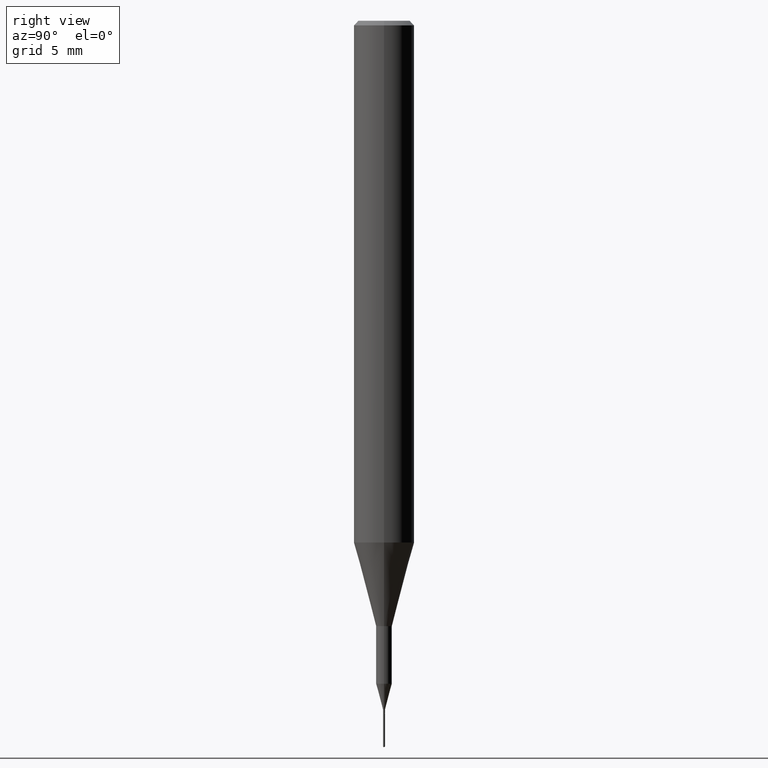
[diagram: clean part render]
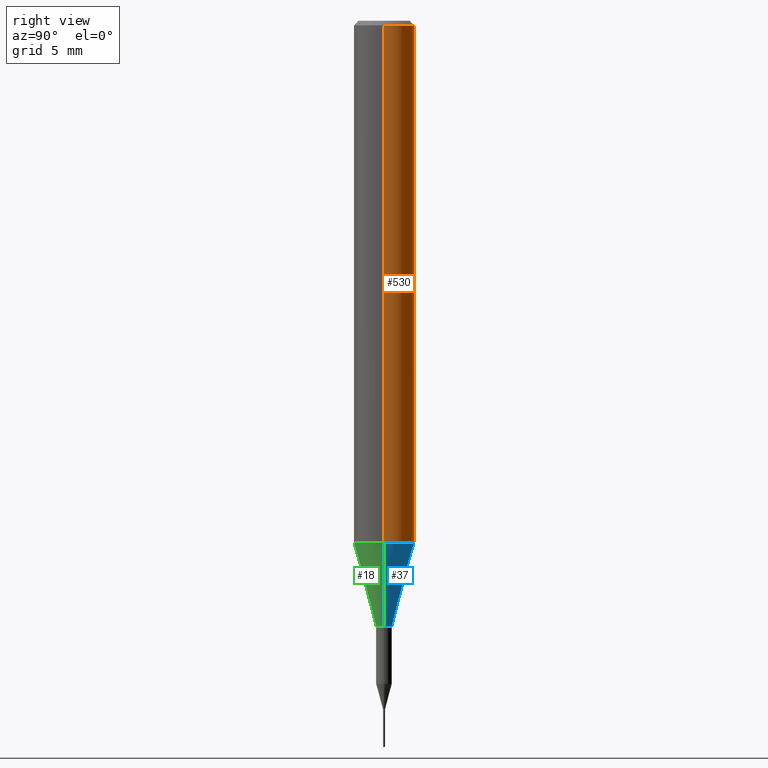
[diagram: same view with three faces highlighted in distinct colors, each labeled with its STEP entity id]
A machine part, right view with three faces highlighted in distinct colors.
Their STEP definitions:

[orange] entity #530 — the highlighted cylindrical surface (edge-blend (fillet) strip) has radius 1.5875 mm, axis along (-0, 0, 1).
#21 = AXIS2_PLACEMENT_3D ( 'NONE', #155, #587, #548 ) ;
#27 = EDGE_CURVE ( 'NONE', #487, #317, #205, .T. ) ;
#32 = ORIENTED_EDGE ( 'NONE', *, *, #397, .T. ) ;
#35 = DIRECTION ( 'NONE',  ( -2.445468806185136597E-29, 3.491481338843145583E-15, 1.000000000000000000 ) ) ;
#44 = CARTESIAN_POINT ( 'NONE',  ( 2.634730117954813298E-29, -3.761696332605275695E-15, -1.077392650149939346 ) ) ;
#47 = AXIS2_PLACEMENT_3D ( 'NONE', #309, #35, #268 ) ;
#56 = DIRECTION ( 'NONE',  ( 1.000000000000000000, -6.982962677686264344E-15, 0.000000000000000000 ) ) ;
#108 = CARTESIAN_POINT ( 'NONE',  ( 0.06250000000000000000, -4.691678049070463404E-16, -0.009375000000000062103 ) ) ;
#132 = DIRECTION ( 'NONE',  ( -2.445468806185136877E-29, 3.491481338843145188E-15, 1.000000000000000000 ) ) ;
#134 = VERTEX_POINT ( 'NONE', #281 ) ;
#155 = CARTESIAN_POINT ( 'NONE',  ( 0.000000000000000000, 0.000000000000000000, 0.000000000000000000 ) ) ;
#205 = LINE ( 'NONE', #339, #562 ) ;
#236 = EDGE_LOOP ( 'NONE', ( #577, #32, #416, #293 ) ) ;
#268 = DIRECTION ( 'NONE',  ( 1.000000000000000000, -6.982962677686266711E-15, 0.000000000000000000 ) ) ;
#281 = CARTESIAN_POINT ( 'NONE',  ( -0.06250000000000012490, -3.317607122755211895E-15, -1.077392650149939346 ) ) ;
#289 = CARTESIAN_POINT ( 'NONE',  ( -0.06250000000000000000, -1.453125275228401137E-15, -0.009375000000000062103 ) ) ;
#293 = ORIENTED_EDGE ( 'NONE', *, *, #27, .F. ) ;
#309 = CARTESIAN_POINT ( 'NONE',  ( 2.292627005798580623E-31, -3.273263755165470801E-17, -0.009375000000000062103 ) ) ;
#317 = VERTEX_POINT ( 'NONE', #108 ) ;
#339 = CARTESIAN_POINT ( 'NONE',  ( 0.06250000000000006939, -4.364351673553921624E-16, 3.047610484872463374E-30 ) ) ;
#342 = LINE ( 'NONE', #521, #454 ) ;
#363 = VERTEX_POINT ( 'NONE', #289 ) ;
#386 = CYLINDRICAL_SURFACE ( 'NONE', #21, 0.06250000000000006939 ) ;
#397 = EDGE_CURVE ( 'NONE', #134, #363, #342, .T. ) ;
#416 = ORIENTED_EDGE ( 'NONE', *, *, #497, .F. ) ;
#436 = DIRECTION ( 'NONE',  ( -2.445468806185136877E-29, 3.491481338843145188E-15, 1.000000000000000000 ) ) ;
#443 = AXIS2_PLACEMENT_3D ( 'NONE', #44, #469, #56 ) ;
#454 = VECTOR ( 'NONE', #132, 39.37007874015748143 ) ;
#469 = DIRECTION ( 'NONE',  ( -2.445468806185136597E-29, 3.491481338843145583E-15, 1.000000000000000000 ) ) ;
#487 = VERTEX_POINT ( 'NONE', #527 ) ;
#497 = EDGE_CURVE ( 'NONE', #317, #363, #510, .T. ) ;
#498 = CIRCLE ( 'NONE', #443, 0.06250000000000012490 ) ;
#510 = CIRCLE ( 'NONE', #47, 0.06250000000000000000 ) ;
#521 = CARTESIAN_POINT ( 'NONE',  ( -0.06250000000000006939, 4.440892098500631092E-16, -3.074334431409319267E-30 ) ) ;
#527 = CARTESIAN_POINT ( 'NONE',  ( 0.06250000000000012490, -4.198131499960668153E-15, -1.077392650149939346 ) ) ;
#530 = ADVANCED_FACE ( 'NONE', ( #557 ), #386, .T. ) ;
#548 = DIRECTION ( 'NONE',  ( 1.000000000000000000, -6.982962677686266711E-15, 4.876176775795935793E-29 ) ) ;
#557 = FACE_OUTER_BOUND ( 'NONE', #236, .T. ) ;
#562 = VECTOR ( 'NONE', #436, 39.37007874015748143 ) ;
#577 = ORIENTED_EDGE ( 'NONE', *, *, #578, .T. ) ;
#578 = EDGE_CURVE ( 'NONE', #487, #134, #498, .T. ) ;
#587 = DIRECTION ( 'NONE',  ( -2.445468806185136597E-29, 3.491481338843145583E-15, 1.000000000000000000 ) ) ;

[blue] entity #37 — the highlighted conical surface has half-angle 15 deg.
#8 = CARTESIAN_POINT ( 'NONE',  ( -0.06250000000000012490, -3.317607122755211895E-15, -1.077392650149939346 ) ) ;
#37 = ADVANCED_FACE ( 'NONE', ( #53 ), #110, .T. ) ;
#44 = CARTESIAN_POINT ( 'NONE',  ( 2.634730117954813298E-29, -3.761696332605275695E-15, -1.077392650149939346 ) ) ;
#51 = CIRCLE ( 'NONE', #399, 0.01624999999999999709 ) ;
#53 = FACE_OUTER_BOUND ( 'NONE', #130, .T. ) ;
#56 = DIRECTION ( 'NONE',  ( 1.000000000000000000, -6.982962677686264344E-15, 0.000000000000000000 ) ) ;
#110 = CONICAL_SURFACE ( 'NONE', #274, 0.06250000000000012490, 0.2617993877991501295 ) ;
#118 = EDGE_CURVE ( 'NONE', #362, #156, #51, .T. ) ;
#122 = DIRECTION ( 'NONE',  ( 1.000000000000000000, -6.982962677686288799E-15, 0.000000000000000000 ) ) ;
#128 = ORIENTED_EDGE ( 'NONE', *, *, #578, .F. ) ;
#130 = EDGE_LOOP ( 'NONE', ( #251, #180, #128, #529 ) ) ;
#134 = VERTEX_POINT ( 'NONE', #281 ) ;
#148 = VECTOR ( 'NONE', #275, 39.37007874015747433 ) ;
#156 = VERTEX_POINT ( 'NONE', #415 ) ;
#173 = EDGE_CURVE ( 'NONE', #156, #134, #584, .T. ) ;
#180 = ORIENTED_EDGE ( 'NONE', *, *, #173, .T. ) ;
#251 = ORIENTED_EDGE ( 'NONE', *, *, #118, .T. ) ;
#274 = AXIS2_PLACEMENT_3D ( 'NONE', #338, #551, #290 ) ;
#275 = DIRECTION ( 'NONE',  ( 0.2588190451025214611, 1.565188264969621573E-15, 0.9659258262890682012 ) ) ;
#281 = CARTESIAN_POINT ( 'NONE',  ( -0.06250000000000012490, -3.317607122755211895E-15, -1.077392650149939346 ) ) ;
#290 = DIRECTION ( 'NONE',  ( 1.000000000000000000, -6.982962677686264344E-15, 0.000000000000000000 ) ) ;
#315 = LINE ( 'NONE', #371, #148 ) ;
#331 = CARTESIAN_POINT ( 'NONE',  ( 0.01624999999999999709, -4.477824817066334148E-15, -1.250000000000000000 ) ) ;
#338 = CARTESIAN_POINT ( 'NONE',  ( 2.634730117954813298E-29, -3.761696332605275695E-15, -1.077392650149939346 ) ) ;
#359 = DIRECTION ( 'NONE',  ( -2.445468806185136597E-29, 3.491481338843145583E-15, 1.000000000000000000 ) ) ;
#362 = VERTEX_POINT ( 'NONE', #331 ) ;
#371 = CARTESIAN_POINT ( 'NONE',  ( 0.06250000000000012490, -4.198131499960668153E-15, -1.077392650149939346 ) ) ;
#399 = AXIS2_PLACEMENT_3D ( 'NONE', #525, #359, #122 ) ;
#415 = CARTESIAN_POINT ( 'NONE',  ( -0.01624999999999999709, -4.456314375662958734E-15, -1.250000000000000000 ) ) ;
#418 = DIRECTION ( 'NONE',  ( -0.2588190451025214611, 5.211531920934551042E-15, 0.9659258262890682012 ) ) ;
#432 = EDGE_CURVE ( 'NONE', #362, #487, #315, .T. ) ;
#443 = AXIS2_PLACEMENT_3D ( 'NONE', #44, #469, #56 ) ;
#446 = VECTOR ( 'NONE', #418, 39.37007874015747433 ) ;
#469 = DIRECTION ( 'NONE',  ( -2.445468806185136597E-29, 3.491481338843145583E-15, 1.000000000000000000 ) ) ;
#487 = VERTEX_POINT ( 'NONE', #527 ) ;
#498 = CIRCLE ( 'NONE', #443, 0.06250000000000012490 ) ;
#525 = CARTESIAN_POINT ( 'NONE',  ( 3.056836007731421306E-29, -4.364351673553932471E-15, -1.250000000000000000 ) ) ;
#527 = CARTESIAN_POINT ( 'NONE',  ( 0.06250000000000012490, -4.198131499960668153E-15, -1.077392650149939346 ) ) ;
#529 = ORIENTED_EDGE ( 'NONE', *, *, #432, .F. ) ;
#551 = DIRECTION ( 'NONE',  ( -2.445468806185136597E-29, 3.491481338843145583E-15, 1.000000000000000000 ) ) ;
#578 = EDGE_CURVE ( 'NONE', #487, #134, #498, .T. ) ;
#584 = LINE ( 'NONE', #8, #446 ) ;

[green] entity #18 — the highlighted conical surface has half-angle 15 deg.
#8 = CARTESIAN_POINT ( 'NONE',  ( -0.06250000000000012490, -3.317607122755211895E-15, -1.077392650149939346 ) ) ;
#9 = DIRECTION ( 'NONE',  ( 1.000000000000000000, -6.982962677686264344E-15, 0.000000000000000000 ) ) ;
#11 = DIRECTION ( 'NONE',  ( 1.000000000000000000, -6.982962677686264344E-15, 0.000000000000000000 ) ) ;
#14 = FACE_OUTER_BOUND ( 'NONE', #38, .T. ) ;
#18 = ADVANCED_FACE ( 'NONE', ( #14 ), #345, .T. ) ;
#33 = ORIENTED_EDGE ( 'NONE', *, *, #222, .T. ) ;
#38 = EDGE_LOOP ( 'NONE', ( #409, #33, #165, #256 ) ) ;
#54 = CARTESIAN_POINT ( 'NONE',  ( 3.056836007731421306E-29, -4.364351673553932471E-15, -1.250000000000000000 ) ) ;
#58 = CARTESIAN_POINT ( 'NONE',  ( 2.634730117954813298E-29, -3.761696332605275695E-15, -1.077392650149939346 ) ) ;
#134 = VERTEX_POINT ( 'NONE', #281 ) ;
#144 = DIRECTION ( 'NONE',  ( 1.000000000000000000, -6.982962677686288799E-15, 0.000000000000000000 ) ) ;
#148 = VECTOR ( 'NONE', #275, 39.37007874015747433 ) ;
#156 = VERTEX_POINT ( 'NONE', #415 ) ;
#161 = CIRCLE ( 'NONE', #313, 0.01624999999999999709 ) ;
#165 = ORIENTED_EDGE ( 'NONE', *, *, #432, .T. ) ;
#173 = EDGE_CURVE ( 'NONE', #156, #134, #584, .T. ) ;
#208 = CARTESIAN_POINT ( 'NONE',  ( 2.634730117954813298E-29, -3.761696332605275695E-15, -1.077392650149939346 ) ) ;
#222 = EDGE_CURVE ( 'NONE', #156, #362, #161, .T. ) ;
#239 = DIRECTION ( 'NONE',  ( -2.445468806185136597E-29, 3.491481338843145583E-15, 1.000000000000000000 ) ) ;
#256 = ORIENTED_EDGE ( 'NONE', *, *, #369, .F. ) ;
#275 = DIRECTION ( 'NONE',  ( 0.2588190451025214611, 1.565188264969621573E-15, 0.9659258262890682012 ) ) ;
#281 = CARTESIAN_POINT ( 'NONE',  ( -0.06250000000000012490, -3.317607122755211895E-15, -1.077392650149939346 ) ) ;
#305 = CIRCLE ( 'NONE', #489, 0.06250000000000012490 ) ;
#313 = AXIS2_PLACEMENT_3D ( 'NONE', #54, #374, #144 ) ;
#315 = LINE ( 'NONE', #371, #148 ) ;
#331 = CARTESIAN_POINT ( 'NONE',  ( 0.01624999999999999709, -4.477824817066334148E-15, -1.250000000000000000 ) ) ;
#345 = CONICAL_SURFACE ( 'NONE', #533, 0.06250000000000012490, 0.2617993877991501295 ) ;
#362 = VERTEX_POINT ( 'NONE', #331 ) ;
#369 = EDGE_CURVE ( 'NONE', #134, #487, #305, .T. ) ;
#371 = CARTESIAN_POINT ( 'NONE',  ( 0.06250000000000012490, -4.198131499960668153E-15, -1.077392650149939346 ) ) ;
#374 = DIRECTION ( 'NONE',  ( -2.445468806185136597E-29, 3.491481338843145583E-15, 1.000000000000000000 ) ) ;
#409 = ORIENTED_EDGE ( 'NONE', *, *, #173, .F. ) ;
#415 = CARTESIAN_POINT ( 'NONE',  ( -0.01624999999999999709, -4.456314375662958734E-15, -1.250000000000000000 ) ) ;
#418 = DIRECTION ( 'NONE',  ( -0.2588190451025214611, 5.211531920934551042E-15, 0.9659258262890682012 ) ) ;
#427 = DIRECTION ( 'NONE',  ( -2.445468806185136597E-29, 3.491481338843145583E-15, 1.000000000000000000 ) ) ;
#432 = EDGE_CURVE ( 'NONE', #362, #487, #315, .T. ) ;
#446 = VECTOR ( 'NONE', #418, 39.37007874015747433 ) ;
#487 = VERTEX_POINT ( 'NONE', #527 ) ;
#489 = AXIS2_PLACEMENT_3D ( 'NONE', #58, #239, #9 ) ;
#527 = CARTESIAN_POINT ( 'NONE',  ( 0.06250000000000012490, -4.198131499960668153E-15, -1.077392650149939346 ) ) ;
#533 = AXIS2_PLACEMENT_3D ( 'NONE', #208, #427, #11 ) ;
#584 = LINE ( 'NONE', #8, #446 ) ;